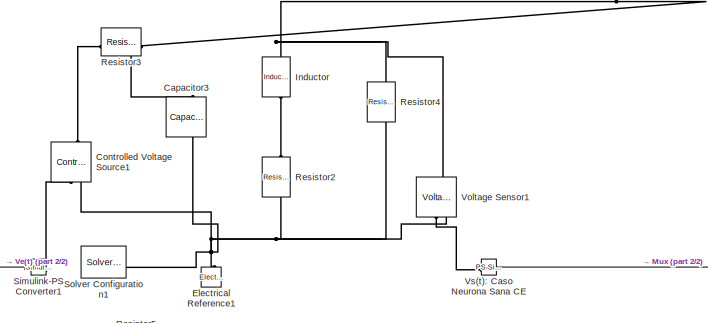
[diagram: root canvas - part 1/2, top center region]
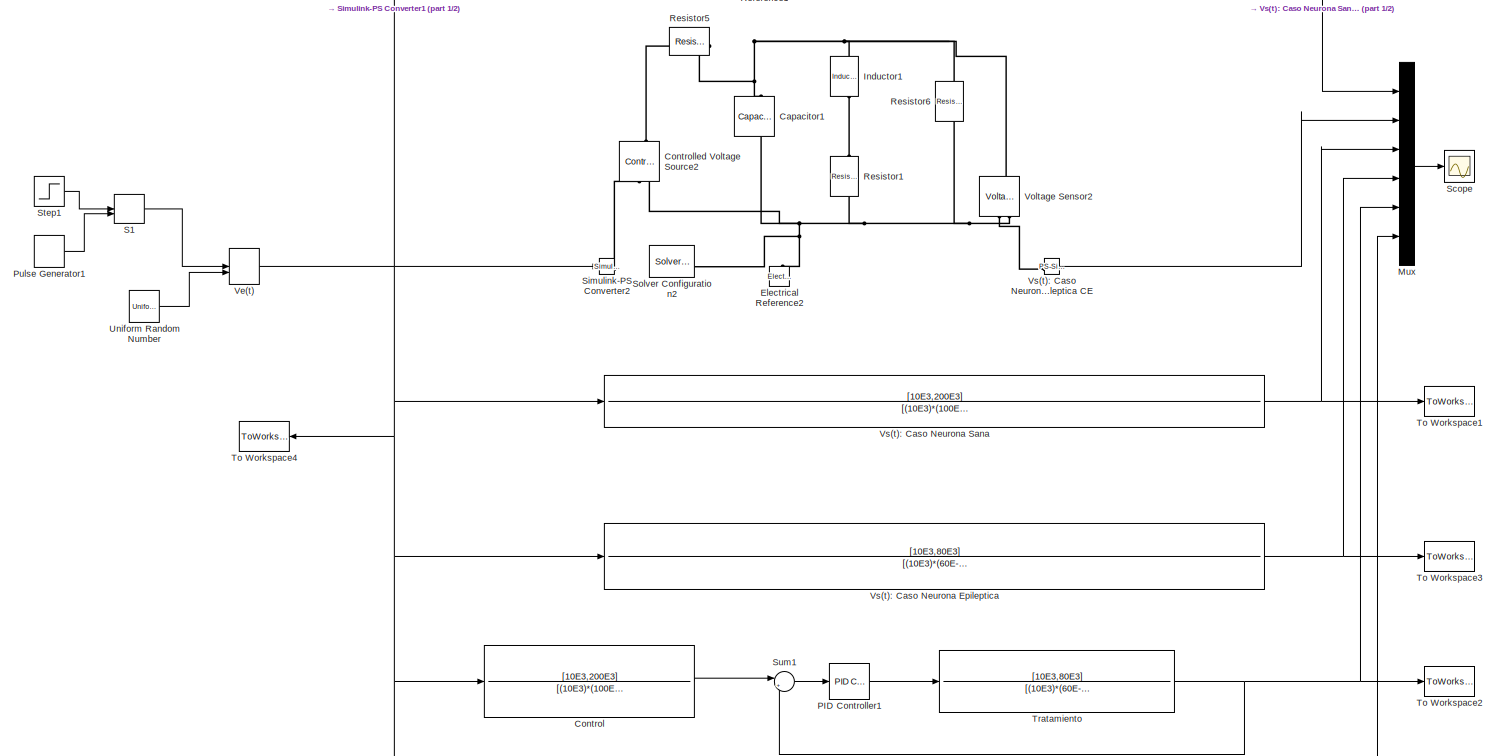
[diagram: root canvas - part 2/2, full width, middle band]
MODEL slx_3b924b20286f
KIND model
CONFIG AbsTol = auto
CONFIG EnableMultiTasking = off
CONFIG FixedStep = auto
CONFIG MaxStep = 1E-3
CONFIG MinStep = auto
CONFIG RelTol = 1e-3
CONFIG SampleTimeConstraint = Unconstrained
CONFIG SolverName = ode23t
CONFIG StartTime = 0.0
CONFIG StopTime = 10.0
BLOCK [Reference] Capacitor1  REF=fl_lib/Electrical/Electrical Elements/Capacitor
  NameLocation = left
  SourceBlock = fl_lib/Electrical/Electrical Elements/Capacitor
  SourceType = Capacitor
BLOCK [Reference] Capacitor3  REF=fl_lib/Electrical/Electrical Elements/Capacitor
  NameLocation = left
  SourceBlock = fl_lib/Electrical/Electrical Elements/Capacitor
  SourceType = Capacitor
BLOCK [TransferFcn] Control
  Denominator = [(10E3)*(100E-9)*(1E6),(10E3)+(((10E3)*(1E6))/1E6)+(100E-9)*(1E6)*(200E3),200E3+1E6+(((200E3)*(1E6))/1E6)]
  Numerator = [10E3,200E3]
BLOCK [Reference] Controlled Voltage Source1  REF=fl_lib/Electrical/Electrical Sources/Controlled Voltage
Source
  NameLocation = right
  SourceBlock = fl_lib/Electrical/Electrical Sources/Controlled Voltage\nSource
  SourceType = Controlled Voltage\nSource
BLOCK [Reference] Controlled Voltage Source2  REF=fl_lib/Electrical/Electrical Sources/Controlled Voltage
Source
  NameLocation = right
  SourceBlock = fl_lib/Electrical/Electrical Sources/Controlled Voltage\nSource
  SourceType = Controlled Voltage\nSource
BLOCK [Reference] Electrical Reference1  REF=fl_lib/Electrical/Electrical Elements/Electrical Reference
  NameLocation = right
  SourceBlock = fl_lib/Electrical/Electrical Elements/Electrical Reference
  SourceType = Electrical Reference
BLOCK [Reference] Electrical Reference2  REF=fl_lib/Electrical/Electrical Elements/Electrical Reference
  NameLocation = right
  SourceBlock = fl_lib/Electrical/Electrical Elements/Electrical Reference
  SourceType = Electrical Reference
BLOCK [Reference] Inductor  REF=fl_lib/Electrical/Electrical Elements/Inductor
  NameLocation = left
  SourceBlock = fl_lib/Electrical/Electrical Elements/Inductor
  SourceType = Inductor
BLOCK [Reference] Inductor1  REF=fl_lib/Electrical/Electrical Elements/Inductor
  NameLocation = left
  SourceBlock = fl_lib/Electrical/Electrical Elements/Inductor
  SourceType = Inductor
BLOCK [Mux] Mux
  DisplayOption = bar
  Inputs = 6
BLOCK [Reference] PID Controller1  REF=slpidlib/PID Controller
  LibrarySourceBlock = simulink/Continuous/PID Controller
  SourceBlock = slpidlib/PID Controller
  SourceType = PID 1dof
BLOCK [DiscretePulseGenerator] Pulse Generator1
  Period = 10
  PhaseDelay = 1
  PulseType = Time based
  PulseWidth = 10
BLOCK [Reference] Resistor1  REF=fl_lib/Electrical/Electrical Elements/Resistor
  NameLocation = right
  SourceBlock = fl_lib/Electrical/Electrical Elements/Resistor
  SourceType = Resistor
BLOCK [Reference] Resistor2  REF=fl_lib/Electrical/Electrical Elements/Resistor
  NameLocation = right
  SourceBlock = fl_lib/Electrical/Electrical Elements/Resistor
  SourceType = Resistor
BLOCK [Reference] Resistor3  REF=fl_lib/Electrical/Electrical Elements/Resistor
  NameLocation = top
  SourceBlock = fl_lib/Electrical/Electrical Elements/Resistor
  SourceType = Resistor
BLOCK [Reference] Resistor4  REF=fl_lib/Electrical/Electrical Elements/Resistor
  NameLocation = right
  SourceBlock = fl_lib/Electrical/Electrical Elements/Resistor
  SourceType = Resistor
BLOCK [Reference] Resistor5  REF=fl_lib/Electrical/Electrical Elements/Resistor
  NameLocation = top
  SourceBlock = fl_lib/Electrical/Electrical Elements/Resistor
  SourceType = Resistor
BLOCK [Reference] Resistor6  REF=fl_lib/Electrical/Electrical Elements/Resistor
  NameLocation = right
  SourceBlock = fl_lib/Electrical/Electrical Elements/Resistor
  SourceType = Resistor
BLOCK [ManualSwitch] S1
  CurrentSetting = 0
BLOCK [Scope] Scope
  ActiveDisplayYMaximum = 1.24686
  ActiveDisplayYMinimum = -1.23254
  Floating = off
  GraphicalSettings = {"GraphicalSettings":{"LegacySettings":true,"Style":{"AxesScalingProperties":{"ScaleAxesLimitsAtStop":false},"Style":{"AxesColor":"[1 1 1]","BackgroundColor":"[1 1 1]","ChannelNames":[""],"ColorOrder":"[0 0.447058823529412 0.741176470588235;0.850980392156863 0.325490196078431 0.0980392156862745;0.929411764705882 0.694117647058824 0.125490196078431;0.494117647058824 0.184313725490196 0.556862745098...<+1031ch>
  MultipleDisplayCache = [{"MaxYLimMag":1.24686,"MaxYLimReal":1.24686,"MinYLimMag":0,"MinYLimReal":-1.23254,"PlotAsMagnitudePhase":false,"ShowGrid":true,"ShowLegend":true,"Title":"%<SignalLabel>","YLabel":""}]
  NumInputPorts = 1
  ShowLegend = on
  WasSavedAsWebScope = on
BLOCK [Reference] Simulink-PS Converter1  REF=nesl_utility/Simulink-PS
Converter
  SourceBlock = nesl_utility/Simulink-PS\nConverter
  SourceType = Simulink-PS\nConverter
BLOCK [Reference] Simulink-PS Converter2  REF=nesl_utility/Simulink-PS
Converter
  SourceBlock = nesl_utility/Simulink-PS\nConverter
  SourceType = Simulink-PS\nConverter
BLOCK [Reference] Solver Configuration1  REF=nesl_utility/Solver
Configuration
  SourceBlock = nesl_utility/Solver\nConfiguration
  SourceType = Solver\nConfiguration
BLOCK [Reference] Solver Configuration2  REF=nesl_utility/Solver
Configuration
  SourceBlock = nesl_utility/Solver\nConfiguration
  SourceType = Solver\nConfiguration
BLOCK [Step] Step1
  Before = 1
  SampleTime = 0
  Time = 0
BLOCK [Sum] Sum1
  Inputs = |+-
BLOCK [ToWorkspace] To Workspace1
  FixptAsFi = on
  MaxDataPoints = inf
  SampleTime = -1
  VariableName = Vs1
BLOCK [ToWorkspace] To Workspace2
  FixptAsFi = on
  MaxDataPoints = inf
  SampleTime = -1
  VariableName = PID
BLOCK [ToWorkspace] To Workspace3
  FixptAsFi = on
  MaxDataPoints = inf
  SampleTime = -1
  VariableName = Vs2
BLOCK [ToWorkspace] To Workspace4
  FixptAsFi = on
  MaxDataPoints = inf
  NameLocation = top
  SampleTime = -1
  VariableName = Ve
BLOCK [TransferFcn] Tratamiento
  Denominator = [(10E3)*(60E-9)*(1E6),(10E3)+(((10E3)*(1E6))/5E6)+(60E-9)*(1E6)*(80E3),80E3+1E6+(((80E3)*(1E6))/5E6)]
  Numerator = [10E3,80E3]
BLOCK [UniformRandomNumber] Uniform Random Number
  SampleTime = 0.1
BLOCK [ManualSwitch] Ve(t)
  CurrentSetting = 0
BLOCK [Reference] Voltage Sensor1  REF=fl_lib/Electrical/Electrical Sensors/Voltage Sensor
  NameLocation = right
  SourceBlock = fl_lib/Electrical/Electrical Sensors/Voltage Sensor
  SourceType = Voltage Sensor
BLOCK [Reference] Voltage Sensor2  REF=fl_lib/Electrical/Electrical Sensors/Voltage Sensor
  NameLocation = right
  SourceBlock = fl_lib/Electrical/Electrical Sensors/Voltage Sensor
  SourceType = Voltage Sensor
BLOCK [TransferFcn] Vs(t): Caso Neurona Epileptica
  Denominator = [(10E3)*(60E-9)*(1E6),(10E3)+(((10E3)*(1E6))/5E6)+(60E-9)*(1E6)*(80E3),80E3+1E6+(((80E3)*(1E6))/5E6)]
  Numerator = [10E3,80E3]
BLOCK [Reference] Vs(t): Caso Neurona Epileptica CE  REF=nesl_utility/PS-Simulink
Converter
  SourceBlock = nesl_utility/PS-Simulink\nConverter
  SourceType = PS-Simulink\nConverter
BLOCK [TransferFcn] Vs(t): Caso Neurona Sana
  Denominator = [(10E3)*(100E-9)*(1E6),(10E3)+(((10E3)*(1E6))/1E6)+(100E-9)*(1E6)*(200E3),200E3+1E6+(((200E3)*(1E6))/1E6)]
  Numerator = [10E3,200E3]
BLOCK [Reference] Vs(t): Caso Neurona Sana CE  REF=nesl_utility/PS-Simulink
Converter
  SourceBlock = nesl_utility/PS-Simulink\nConverter
  SourceType = PS-Simulink\nConverter
LINE Control:1 -> Sum1:1
LINE Mux:1 -> Scope:1
LINE PID Controller1:1 -> Tratamiento:1
LINE Pulse Generator1:1 -> S1:2
LINE S1:1 -> Ve(t):1
LINE Step1:1 -> S1:1
LINE Sum1:1 -> PID Controller1:1
NET Tratamiento:1 -> Mux:5, Sum1:2, To Workspace2:1
LINE Uniform Random Number:1 -> Ve(t):2
NET Ve(t):1 -> Control:1, Mux:6, Simulink-PS Converter1:1, Simulink-PS Converter2:1, To Workspace4:1, Vs(t): Caso Neurona Epileptica:1, Vs(t): Caso Neurona Sana:1
LINE Vs(t): Caso Neurona Epileptica CE:1 -> Mux:2
NET Vs(t): Caso Neurona Epileptica:1 -> Mux:4, To Workspace3:1
LINE Vs(t): Caso Neurona Sana CE:1 -> Mux:1
NET Vs(t): Caso Neurona Sana:1 -> Mux:3, To Workspace1:1
PNET net1: Capacitor1:LConn1 -- Inductor1:LConn1 -- Resistor5:LConn1 -- Resistor6:RConn1 -- Voltage Sensor2:LConn1
PNET net2: Capacitor1:RConn1 -- Controlled Voltage Source2:RConn2 -- Electrical Reference2:LConn1 -- Resistor1:LConn1 -- Resistor6:LConn1 -- Solver Configuration2:RConn1 -- Voltage Sensor2:RConn2
PNET net3: Capacitor3:LConn1 -- Inductor:LConn1 -- Resistor3:LConn1 -- Resistor4:RConn1 -- Voltage Sensor1:LConn1
PNET net4: Capacitor3:RConn1 -- Controlled Voltage Source1:RConn2 -- Electrical Reference1:LConn1 -- Resistor2:LConn1 -- Resistor4:LConn1 -- Solver Configuration1:RConn1 -- Voltage Sensor1:RConn2
PLINE Controlled Voltage Source1:LConn1 -- Resistor3:RConn1
PLINE Controlled Voltage Source1:RConn1 -- Simulink-PS Converter1:RConn1
PLINE Controlled Voltage Source2:LConn1 -- Resistor5:RConn1
PLINE Controlled Voltage Source2:RConn1 -- Simulink-PS Converter2:RConn1
PLINE Inductor1:RConn1 -- Resistor1:RConn1
PLINE Inductor:RConn1 -- Resistor2:RConn1
PLINE Voltage Sensor1:RConn1 -- Vs(t): Caso Neurona Sana CE:LConn1
PLINE Voltage Sensor2:RConn1 -- Vs(t): Caso Neurona Epileptica CE:LConn1
note: NET lines group one-source signal fan-out (src -> all destinations, sorted); 1:1 wires keep LINE; PNET lines group multi-terminal physical nets as a canonical sorted terminal list (undirected conserving connections); 2-terminal nets keep the pairwise PLINE form
